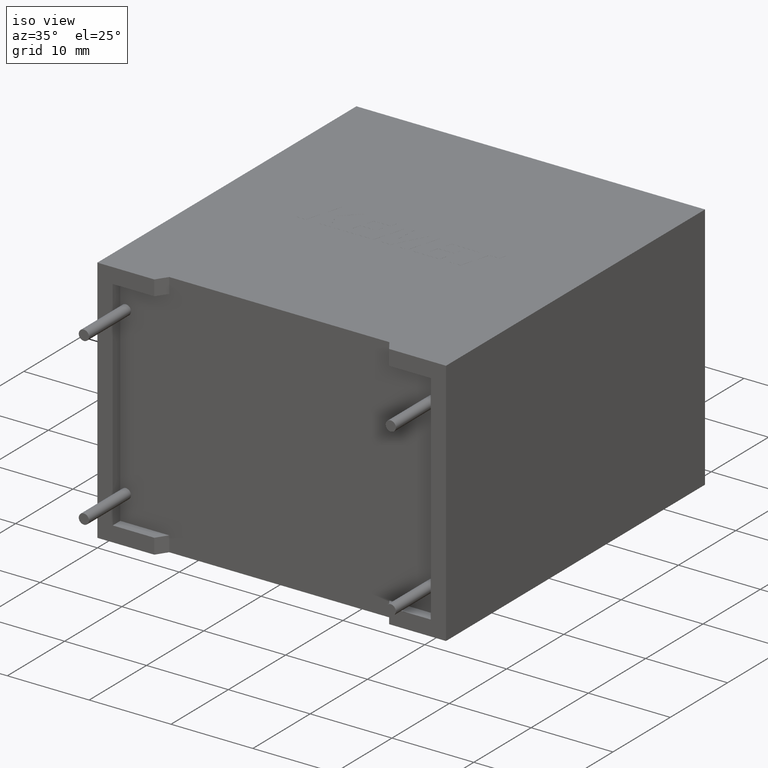
[diagram: clean part render]
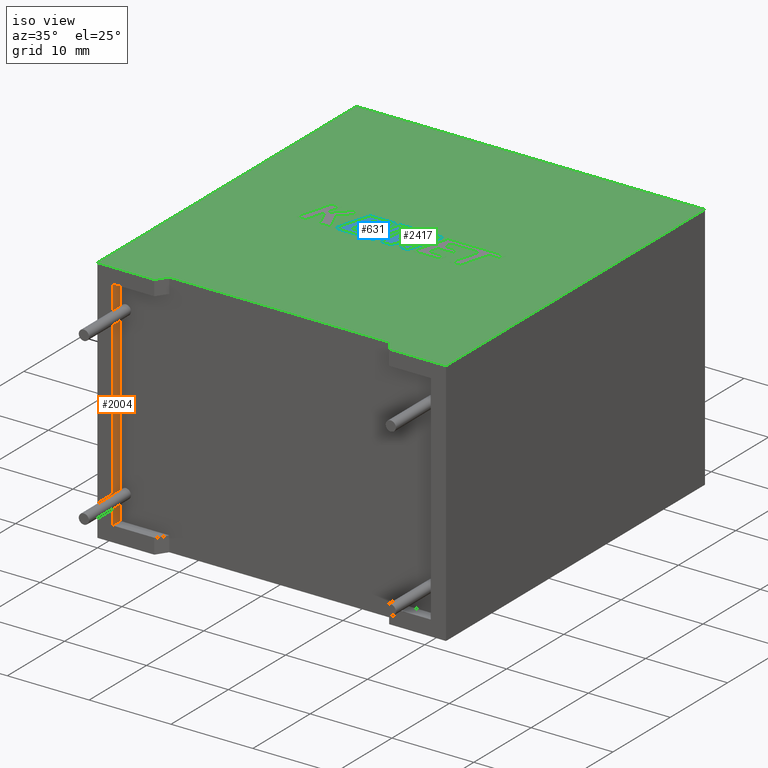
[diagram: same view with three faces highlighted in distinct colors, each labeled with its STEP entity id]
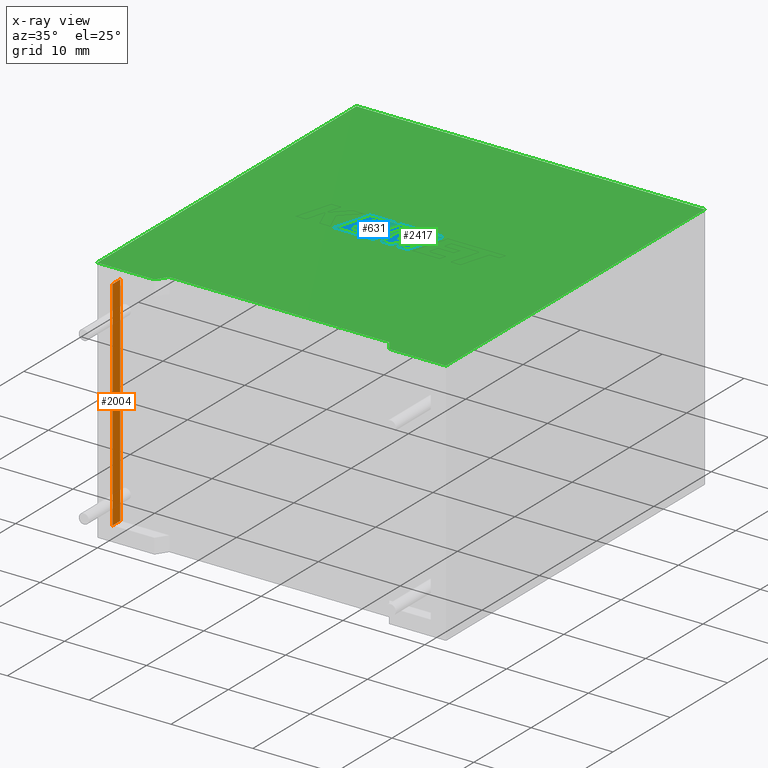
[diagram: x-ray of the same camera — body ghosted, the three highlighted faces saturated]
A machine part, iso view with three faces highlighted in distinct colors.
The next image is the same camera in x-ray (body ghosted, the three faces saturated) — at least one of them is partly hidden behind the body in this view.
Their STEP definitions:

[orange] entity #2004 — the highlighted planar face has unit normal (-1, 0, 0).
#155 = EDGE_CURVE ( 'NONE', #1186, #2855, #3090, .T. ) ;
#436 = ORIENTED_EDGE ( 'NONE', *, *, #3044, .T. ) ;
#516 = CARTESIAN_POINT ( 'NONE',  ( 1.868687999999999700, 1.328880000000000100, 28.53131200000000000 ) ) ;
#649 = EDGE_LOOP ( 'NONE', ( #2933, #1786, #1839, #436 ) ) ;
#772 = LINE ( 'NONE', #849, #1125 ) ;
#801 = FACE_OUTER_BOUND ( 'NONE', #649, .T. ) ;
#849 = CARTESIAN_POINT ( 'NONE',  ( 1.868687999999999700, 1.328880000000000100, 28.53131200000000000 ) ) ;
#857 = DIRECTION ( 'NONE',  ( 0.0000000000000000000, 0.0000000000000000000, -1.000000000000000000 ) ) ;
#904 = CARTESIAN_POINT ( 'NONE',  ( 1.868687999999999700, 0.0000000000000000000, 1.868687999999999900 ) ) ;
#905 = DIRECTION ( 'NONE',  ( -0.0000000000000000000, -1.000000000000000000, -0.0000000000000000000 ) ) ;
#1125 = VECTOR ( 'NONE', #857, 1000.000000000000000 ) ;
#1186 = VERTEX_POINT ( 'NONE', #2762 ) ;
#1210 = VERTEX_POINT ( 'NONE', #1855 ) ;
#1264 = DIRECTION ( 'NONE',  ( 0.0000000000000000000, 0.0000000000000000000, -1.000000000000000000 ) ) ;
#1344 = AXIS2_PLACEMENT_3D ( 'NONE', #2194, #2425, #1973 ) ;
#1484 = CARTESIAN_POINT ( 'NONE',  ( 1.868687999999999700, 0.0000000000000000000, 28.53131200000000000 ) ) ;
#1487 = VECTOR ( 'NONE', #1264, 1000.000000000000000 ) ;
#1546 = EDGE_CURVE ( 'NONE', #1210, #1186, #772, .T. ) ;
#1612 = VERTEX_POINT ( 'NONE', #2252 ) ;
#1786 = ORIENTED_EDGE ( 'NONE', *, *, #155, .F. ) ;
#1839 = ORIENTED_EDGE ( 'NONE', *, *, #1546, .F. ) ;
#1855 = CARTESIAN_POINT ( 'NONE',  ( 1.868687999999999700, 1.328880000000000100, 28.53131200000000000 ) ) ;
#1973 = DIRECTION ( 'NONE',  ( 0.0000000000000000000, 0.0000000000000000000, 1.000000000000000000 ) ) ;
#2004 = ADVANCED_FACE ( 'NONE', ( #801 ), #2969, .F. ) ;
#2194 = CARTESIAN_POINT ( 'NONE',  ( 1.868687999999999700, 1.328880000000000100, 28.53131200000000000 ) ) ;
#2252 = CARTESIAN_POINT ( 'NONE',  ( 1.868687999999999700, 0.0000000000000000000, 28.53131200000000000 ) ) ;
#2351 = CARTESIAN_POINT ( 'NONE',  ( 1.868687999999999700, 1.328880000000000100, 1.868687999999999900 ) ) ;
#2425 = DIRECTION ( 'NONE',  ( -1.000000000000000000, 0.0000000000000000000, 0.0000000000000000000 ) ) ;
#2480 = EDGE_CURVE ( 'NONE', #1612, #2855, #3041, .T. ) ;
#2762 = CARTESIAN_POINT ( 'NONE',  ( 1.868687999999999700, 1.328880000000000100, 1.868687999999999900 ) ) ;
#2850 = LINE ( 'NONE', #516, #2997 ) ;
#2855 = VERTEX_POINT ( 'NONE', #904 ) ;
#2924 = DIRECTION ( 'NONE',  ( -0.0000000000000000000, -1.000000000000000000, -0.0000000000000000000 ) ) ;
#2933 = ORIENTED_EDGE ( 'NONE', *, *, #2480, .T. ) ;
#2953 = VECTOR ( 'NONE', #905, 1000.000000000000000 ) ;
#2969 = PLANE ( 'NONE',  #1344 ) ;
#2997 = VECTOR ( 'NONE', #2924, 1000.000000000000000 ) ;
#3041 = LINE ( 'NONE', #1484, #1487 ) ;
#3044 = EDGE_CURVE ( 'NONE', #1210, #1612, #2850, .T. ) ;
#3090 = LINE ( 'NONE', #2351, #2953 ) ;

[blue] entity #631 — the highlighted planar face has unit normal (0, 0, -1).
#1 = EDGE_CURVE ( 'NONE', #1891, #2957, #434, .T. ) ;
#24 = EDGE_CURVE ( 'NONE', #1314, #997, #93, .T. ) ;
#34 = EDGE_CURVE ( 'NONE', #621, #551, #2257, .T. ) ;
#35 = VERTEX_POINT ( 'NONE', #3023 ) ;
#55 = ORIENTED_EDGE ( 'NONE', *, *, #2298, .T. ) ;
#74 = EDGE_CURVE ( 'NONE', #1447, #2144, #1228, .T. ) ;
#93 = LINE ( 'NONE', #2565, #1378 ) ;
#96 = VERTEX_POINT ( 'NONE', #1582 ) ;
#107 = CARTESIAN_POINT ( 'NONE',  ( 23.69914816909359300, 24.29429440274525800, 30.40500000000000100 ) ) ;
#111 = EDGE_CURVE ( 'NONE', #2614, #2317, #2408, .T. ) ;
#129 = LINE ( 'NONE', #1380, #2639 ) ;
#152 = ORIENTED_EDGE ( 'NONE', *, *, #2387, .T. ) ;
#162 = CARTESIAN_POINT ( 'NONE',  ( 19.04451057535562700, 23.91769180815600000, 30.40500000000000100 ) ) ;
#185 = VERTEX_POINT ( 'NONE', #2592 ) ;
#204 = VECTOR ( 'NONE', #1853, 1000.000000000000000 ) ;
#206 = CARTESIAN_POINT ( 'NONE',  ( 18.68735580131990700, 23.09268343126179300, 30.40500000000000100 ) ) ;
#224 = VECTOR ( 'NONE', #1656, 1000.000000000000000 ) ;
#233 = DIRECTION ( 'NONE',  ( 0.2763139702539144100, 0.9610674221107065000, 0.0000000000000000000 ) ) ;
#237 = EDGE_CURVE ( 'NONE', #240, #1984, #1224, .T. ) ;
#240 = VERTEX_POINT ( 'NONE', #3079 ) ;
#257 = EDGE_CURVE ( 'NONE', #1739, #1891, #129, .T. ) ;
#299 = EDGE_CURVE ( 'NONE', #2144, #2734, #1103, .T. ) ;
#302 = LINE ( 'NONE', #3022, #2699 ) ;
#369 = CARTESIAN_POINT ( 'NONE',  ( 19.28430409104226900, 24.76197267852246900, 30.40500000000000100 ) ) ;
#397 = VECTOR ( 'NONE', #1943, 1000.000000000000000 ) ;
#400 = EDGE_CURVE ( 'NONE', #2957, #185, #1375, .T. ) ;
#431 = CARTESIAN_POINT ( 'NONE',  ( 20.64337227469650000, 24.27527815657259000, 30.40500000000000100 ) ) ;
#434 = LINE ( 'NONE', #2296, #2836 ) ;
#472 = DIRECTION ( 'NONE',  ( -1.000000000000000000, 0.0000000000000000000, 0.0000000000000000000 ) ) ;
#475 = ORIENTED_EDGE ( 'NONE', *, *, #111, .T. ) ;
#492 = DIRECTION ( 'NONE',  ( -1.000000000000000000, 0.0000000000000000000, 0.0000000000000000000 ) ) ;
#515 = AXIS2_PLACEMENT_3D ( 'NONE', #2291, #1833, #1809 ) ;
#549 = VERTEX_POINT ( 'NONE', #369 ) ;
#551 = VERTEX_POINT ( 'NONE', #633 ) ;
#560 = CARTESIAN_POINT ( 'NONE',  ( 19.50954545448809100, 20.32643999999987700, 30.40500000000000100 ) ) ;
#604 = DIRECTION ( 'NONE',  ( 0.2740217765954296400, 0.9617234872620531400, 0.0000000000000000000 ) ) ;
#611 = VECTOR ( 'NONE', #233, 1000.000000000000100 ) ;
#621 = VERTEX_POINT ( 'NONE', #107 ) ;
#631 = ADVANCED_FACE ( 'NONE', ( #3122 ), #2310, .F. ) ;
#633 = CARTESIAN_POINT ( 'NONE',  ( 22.55971088192821100, 20.32643999999988100, 30.40500000000000100 ) ) ;
#641 = CARTESIAN_POINT ( 'NONE',  ( 17.02363656092146000, 23.91769180815600000, 30.40500000000000100 ) ) ;
#685 = LINE ( 'NONE', #1430, #2163 ) ;
#729 = CARTESIAN_POINT ( 'NONE',  ( 16.00748119315608500, 24.76197267852246900, 30.40500000000000100 ) ) ;
#752 = CARTESIAN_POINT ( 'NONE',  ( 22.55971088192821100, 20.32643999999988100, 30.40500000000000100 ) ) ;
#787 = DIRECTION ( 'NONE',  ( -1.000000000000000000, 0.0000000000000000000, 0.0000000000000000000 ) ) ;
#821 = EDGE_CURVE ( 'NONE', #1984, #549, #2479, .T. ) ;
#828 = ORIENTED_EDGE ( 'NONE', *, *, #2932, .T. ) ;
#838 = CARTESIAN_POINT ( 'NONE',  ( 18.45314577919338500, 22.27270559325017300, 30.40500000000000100 ) ) ;
#851 = ORIENTED_EDGE ( 'NONE', *, *, #237, .T. ) ;
#898 = VECTOR ( 'NONE', #1627, 1000.000000000000200 ) ;
#926 = DIRECTION ( 'NONE',  ( -0.2765379750249978300, -0.9610029908221272600, 0.0000000000000000000 ) ) ;
#997 = VERTEX_POINT ( 'NONE', #1639 ) ;
#998 = VERTEX_POINT ( 'NONE', #1262 ) ;
#1028 = VECTOR ( 'NONE', #787, 1000.000000000000000 ) ;
#1089 = ORIENTED_EDGE ( 'NONE', *, *, #1269, .T. ) ;
#1096 = LINE ( 'NONE', #1146, #2908 ) ;
#1103 = LINE ( 'NONE', #206, #2178 ) ;
#1107 = VECTOR ( 'NONE', #2061, 1000.000000000000000 ) ;
#1121 = ORIENTED_EDGE ( 'NONE', *, *, #821, .T. ) ;
#1146 = CARTESIAN_POINT ( 'NONE',  ( 14.73111344322171200, 20.32643999999987700, 30.40500000000000100 ) ) ;
#1174 = CARTESIAN_POINT ( 'NONE',  ( 23.68684829922329600, 20.32643999999988100, 30.40500000000000100 ) ) ;
#1197 = CARTESIAN_POINT ( 'NONE',  ( 18.69434191160631900, 21.17030278269269100, 30.40500000000000100 ) ) ;
#1206 = CARTESIAN_POINT ( 'NONE',  ( 24.96209664954390200, 24.76197267852246900, 30.40500000000000100 ) ) ;
#1224 = LINE ( 'NONE', #641, #204 ) ;
#1228 = LINE ( 'NONE', #838, #1771 ) ;
#1262 = CARTESIAN_POINT ( 'NONE',  ( 21.60450190883435100, 20.32643999999987700, 30.40500000000000100 ) ) ;
#1269 = EDGE_CURVE ( 'NONE', #2593, #998, #2538, .T. ) ;
#1273 = DIRECTION ( 'NONE',  ( 1.000000000000000000, 0.0000000000000000000, 0.0000000000000000000 ) ) ;
#1287 = LINE ( 'NONE', #1197, #1492 ) ;
#1289 = DIRECTION ( 'NONE',  ( 0.4668459304955230900, 0.8843386665637600300, 0.0000000000000000000 ) ) ;
#1309 = CARTESIAN_POINT ( 'NONE',  ( 23.69914816909359300, 24.29429440274525800, 30.40500000000000100 ) ) ;
#1314 = VERTEX_POINT ( 'NONE', #1878 ) ;
#1320 = CARTESIAN_POINT ( 'NONE',  ( 19.50954545448809100, 20.32643999999987700, 30.40500000000000100 ) ) ;
#1324 = ORIENTED_EDGE ( 'NONE', *, *, #299, .T. ) ;
#1352 = EDGE_CURVE ( 'NONE', #2734, #240, #685, .T. ) ;
#1375 = LINE ( 'NONE', #1550, #1028 ) ;
#1378 = VECTOR ( 'NONE', #604, 1000.000000000000100 ) ;
#1380 = CARTESIAN_POINT ( 'NONE',  ( 23.01670218402871300, 24.76197267852246900, 30.40500000000000100 ) ) ;
#1382 = ORIENTED_EDGE ( 'NONE', *, *, #257, .T. ) ;
#1387 = CARTESIAN_POINT ( 'NONE',  ( 23.01670218402871300, 24.76197267852246900, 30.40500000000000100 ) ) ;
#1396 = CARTESIAN_POINT ( 'NONE',  ( 19.72672177880340200, 24.76197267852246900, 30.40500000000000100 ) ) ;
#1406 = LINE ( 'NONE', #1663, #2941 ) ;
#1430 = CARTESIAN_POINT ( 'NONE',  ( 16.78357331124689000, 23.09268343126179300, 30.40500000000000100 ) ) ;
#1447 = VERTEX_POINT ( 'NONE', #1495 ) ;
#1451 = DIRECTION ( 'NONE',  ( -1.000000000000000000, 0.0000000000000000000, 0.0000000000000000000 ) ) ;
#1458 = ORIENTED_EDGE ( 'NONE', *, *, #24, .T. ) ;
#1481 = EDGE_CURVE ( 'NONE', #551, #2352, #2330, .T. ) ;
#1490 = VECTOR ( 'NONE', #1273, 1000.000000000000000 ) ;
#1492 = VECTOR ( 'NONE', #492, 1000.000000000000000 ) ;
#1495 = CARTESIAN_POINT ( 'NONE',  ( 18.45314577919338500, 22.27270559325017300, 30.40500000000000100 ) ) ;
#1499 = VECTOR ( 'NONE', #1712, 1000.000000000000200 ) ;
#1550 = CARTESIAN_POINT ( 'NONE',  ( 21.61565822307399600, 24.76197267852246900, 30.40500000000000100 ) ) ;
#1561 = VECTOR ( 'NONE', #2816, 1000.000000000000000 ) ;
#1566 = DIRECTION ( 'NONE',  ( 0.05375259206908569700, 0.9985542843760946100, 0.0000000000000000000 ) ) ;
#1567 = ORIENTED_EDGE ( 'NONE', *, *, #2086, .T. ) ;
#1582 = CARTESIAN_POINT ( 'NONE',  ( 18.69434191160631900, 21.17030278269269100, 30.40500000000000100 ) ) ;
#1627 = DIRECTION ( 'NONE',  ( -0.2762517575166409900, -0.9610853065513834700, 0.0000000000000000000 ) ) ;
#1639 = CARTESIAN_POINT ( 'NONE',  ( 16.54963302310860100, 22.27270559325017300, 30.40500000000000100 ) ) ;
#1656 = DIRECTION ( 'NONE',  ( -0.05596501978068446600, -0.9984327301130244700, 0.0000000000000000000 ) ) ;
#1663 = CARTESIAN_POINT ( 'NONE',  ( 16.00748119315608500, 24.76197267852246900, 30.40500000000000100 ) ) ;
#1692 = ORIENTED_EDGE ( 'NONE', *, *, #1481, .T. ) ;
#1712 = DIRECTION ( 'NONE',  ( 0.2732148821746573400, 0.9619530280415400400, 0.0000000000000000000 ) ) ;
#1715 = EDGE_CURVE ( 'NONE', #35, #2614, #1096, .T. ) ;
#1728 = LINE ( 'NONE', #3104, #611 ) ;
#1739 = VERTEX_POINT ( 'NONE', #1387 ) ;
#1756 = ORIENTED_EDGE ( 'NONE', *, *, #2366, .T. ) ;
#1767 = ORIENTED_EDGE ( 'NONE', *, *, #74, .T. ) ;
#1771 = VECTOR ( 'NONE', #2532, 1000.000000000000000 ) ;
#1794 = ORIENTED_EDGE ( 'NONE', *, *, #2591, .T. ) ;
#1809 = DIRECTION ( 'NONE',  ( -1.000000000000000000, 0.0000000000000000000, -0.0000000000000000000 ) ) ;
#1833 = DIRECTION ( 'NONE',  ( 0.0000000000000000000, 0.0000000000000000000, -1.000000000000000000 ) ) ;
#1853 = DIRECTION ( 'NONE',  ( 1.000000000000000000, 0.0000000000000000000, 0.0000000000000000000 ) ) ;
#1878 = CARTESIAN_POINT ( 'NONE',  ( 16.23552779361820300, 21.17030278269269100, 30.40500000000000100 ) ) ;
#1891 = VERTEX_POINT ( 'NONE', #2134 ) ;
#1892 = DIRECTION ( 'NONE',  ( 0.2793947940878290800, 0.9601763114327595000, 0.0000000000000000000 ) ) ;
#1897 = CARTESIAN_POINT ( 'NONE',  ( 20.42202856382045800, 20.32643999999987700, 30.40500000000000100 ) ) ;
#1900 = EDGE_CURVE ( 'NONE', #2352, #2347, #1728, .T. ) ;
#1943 = DIRECTION ( 'NONE',  ( 1.000000000000000000, 0.0000000000000000000, 0.0000000000000000000 ) ) ;
#1955 = VECTOR ( 'NONE', #1451, 1000.000000000000000 ) ;
#1964 = EDGE_LOOP ( 'NONE', ( #152, #1382, #2638, #2601, #2516, #1756, #1458, #1567, #1767, #1324, #2032, #851, #1121, #1794, #55, #2537, #475, #828, #1089, #2928, #3000, #1692, #2700 ) ) ;
#1984 = VERTEX_POINT ( 'NONE', #2709 ) ;
#2032 = ORIENTED_EDGE ( 'NONE', *, *, #1352, .T. ) ;
#2046 = VECTOR ( 'NONE', #1289, 1000.000000000000000 ) ;
#2050 = DIRECTION ( 'NONE',  ( -0.2760118818968583200, -0.9611542233438683500, 0.0000000000000000000 ) ) ;
#2061 = DIRECTION ( 'NONE',  ( 0.2759782365590843200, 0.9611638845408925200, 0.0000000000000000000 ) ) ;
#2086 = EDGE_CURVE ( 'NONE', #997, #1447, #2274, .T. ) ;
#2104 = DIRECTION ( 'NONE',  ( 1.000000000000000000, 0.0000000000000000000, 0.0000000000000000000 ) ) ;
#2134 = CARTESIAN_POINT ( 'NONE',  ( 21.44508031966771700, 21.59317114338324800, 30.40500000000000100 ) ) ;
#2144 = VERTEX_POINT ( 'NONE', #2284 ) ;
#2163 = VECTOR ( 'NONE', #1892, 1000.000000000000100 ) ;
#2178 = VECTOR ( 'NONE', #472, 1000.000000000000000 ) ;
#2257 = LINE ( 'NONE', #1309, #2521 ) ;
#2261 = CARTESIAN_POINT ( 'NONE',  ( 16.78357331124689000, 23.09268343126179300, 30.40500000000000100 ) ) ;
#2274 = LINE ( 'NONE', #2511, #1490 ) ;
#2284 = CARTESIAN_POINT ( 'NONE',  ( 18.68735580131990700, 23.09268343126179300, 30.40500000000000100 ) ) ;
#2291 = CARTESIAN_POINT ( 'NONE',  ( -0.1503410928526370500, -1.896653983250437700, 30.40500000000000100 ) ) ;
#2296 = CARTESIAN_POINT ( 'NONE',  ( 21.44508031966771700, 21.59317114338324800, 30.40500000000000100 ) ) ;
#2298 = EDGE_CURVE ( 'NONE', #2383, #35, #1406, .T. ) ;
#2310 = PLANE ( 'NONE',  #515 ) ;
#2317 = VERTEX_POINT ( 'NONE', #431 ) ;
#2330 = LINE ( 'NONE', #752, #397 ) ;
#2347 = VERTEX_POINT ( 'NONE', #2665 ) ;
#2350 = CARTESIAN_POINT ( 'NONE',  ( 20.64337227469650000, 24.27527815657259000, 30.40500000000000100 ) ) ;
#2352 = VERTEX_POINT ( 'NONE', #1174 ) ;
#2366 = EDGE_CURVE ( 'NONE', #96, #1314, #1287, .T. ) ;
#2380 = LINE ( 'NONE', #1396, #898 ) ;
#2382 = CARTESIAN_POINT ( 'NONE',  ( 21.61565822307399600, 24.76197267852246900, 30.40500000000000100 ) ) ;
#2383 = VERTEX_POINT ( 'NONE', #729 ) ;
#2387 = EDGE_CURVE ( 'NONE', #2347, #1739, #2615, .T. ) ;
#2408 = LINE ( 'NONE', #1320, #1107 ) ;
#2479 = LINE ( 'NONE', #162, #1499 ) ;
#2511 = CARTESIAN_POINT ( 'NONE',  ( 16.54963302310860100, 22.27270559325017300, 30.40500000000000100 ) ) ;
#2516 = ORIENTED_EDGE ( 'NONE', *, *, #2889, .T. ) ;
#2521 = VECTOR ( 'NONE', #2050, 1000.000000000000100 ) ;
#2532 = DIRECTION ( 'NONE',  ( 0.2746459304916870600, 0.9615454294334487800, 0.0000000000000000000 ) ) ;
#2537 = ORIENTED_EDGE ( 'NONE', *, *, #1715, .T. ) ;
#2538 = LINE ( 'NONE', #1897, #1561 ) ;
#2565 = CARTESIAN_POINT ( 'NONE',  ( 16.23552779361820300, 21.17030278269269100, 30.40500000000000100 ) ) ;
#2591 = EDGE_CURVE ( 'NONE', #549, #2383, #302, .T. ) ;
#2592 = CARTESIAN_POINT ( 'NONE',  ( 19.72672177880340200, 24.76197267852246900, 30.40500000000000100 ) ) ;
#2593 = VERTEX_POINT ( 'NONE', #3013 ) ;
#2601 = ORIENTED_EDGE ( 'NONE', *, *, #400, .T. ) ;
#2614 = VERTEX_POINT ( 'NONE', #560 ) ;
#2615 = LINE ( 'NONE', #1206, #1955 ) ;
#2638 = ORIENTED_EDGE ( 'NONE', *, *, #1, .T. ) ;
#2639 = VECTOR ( 'NONE', #3068, 1000.000000000000100 ) ;
#2665 = CARTESIAN_POINT ( 'NONE',  ( 24.96209664954390200, 24.76197267852246900, 30.40500000000000100 ) ) ;
#2689 = EDGE_CURVE ( 'NONE', #998, #621, #2733, .T. ) ;
#2699 = VECTOR ( 'NONE', #2764, 1000.000000000000000 ) ;
#2700 = ORIENTED_EDGE ( 'NONE', *, *, #1900, .T. ) ;
#2709 = CARTESIAN_POINT ( 'NONE',  ( 19.04451057535562700, 23.91769180815600000, 30.40500000000000100 ) ) ;
#2733 = LINE ( 'NONE', #2759, #2046 ) ;
#2734 = VERTEX_POINT ( 'NONE', #2261 ) ;
#2759 = CARTESIAN_POINT ( 'NONE',  ( 21.60450190883435100, 20.32643999999987700, 30.40500000000000100 ) ) ;
#2764 = DIRECTION ( 'NONE',  ( -1.000000000000000000, 0.0000000000000000000, 0.0000000000000000000 ) ) ;
#2816 = DIRECTION ( 'NONE',  ( 1.000000000000000000, 0.0000000000000000000, 0.0000000000000000000 ) ) ;
#2836 = VECTOR ( 'NONE', #1566, 1000.000000000000100 ) ;
#2889 = EDGE_CURVE ( 'NONE', #185, #96, #2380, .T. ) ;
#2891 = LINE ( 'NONE', #2350, #224 ) ;
#2908 = VECTOR ( 'NONE', #2104, 1000.000000000000000 ) ;
#2928 = ORIENTED_EDGE ( 'NONE', *, *, #2689, .T. ) ;
#2932 = EDGE_CURVE ( 'NONE', #2317, #2593, #2891, .T. ) ;
#2941 = VECTOR ( 'NONE', #926, 1000.000000000000100 ) ;
#2957 = VERTEX_POINT ( 'NONE', #2382 ) ;
#3000 = ORIENTED_EDGE ( 'NONE', *, *, #34, .T. ) ;
#3013 = CARTESIAN_POINT ( 'NONE',  ( 20.42202856382045800, 20.32643999999987700, 30.40500000000000100 ) ) ;
#3022 = CARTESIAN_POINT ( 'NONE',  ( 19.28430409104226900, 24.76197267852246900, 30.40500000000000100 ) ) ;
#3023 = CARTESIAN_POINT ( 'NONE',  ( 14.73111344322171200, 20.32643999999987700, 30.40500000000000100 ) ) ;
#3068 = DIRECTION ( 'NONE',  ( -0.4443210308329524900, -0.8958676361826798400, 0.0000000000000000000 ) ) ;
#3079 = CARTESIAN_POINT ( 'NONE',  ( 17.02363656092146000, 23.91769180815600000, 30.40500000000000100 ) ) ;
#3104 = CARTESIAN_POINT ( 'NONE',  ( 23.68684829922329600, 20.32643999999988100, 30.40500000000000100 ) ) ;
#3122 = FACE_OUTER_BOUND ( 'NONE', #1964, .T. ) ;

[green] entity #2417 — the highlighted planar face has unit normal (0, 0, -1).
#60 = DIRECTION ( 'NONE',  ( -1.000000000000000000, 0.0000000000000000000, -0.0000000000000000000 ) ) ;
#116 = CARTESIAN_POINT ( 'NONE',  ( 35.64999999999999900, 1.702259050814820900E-015, 30.39999999999999900 ) ) ;
#198 = VECTOR ( 'NONE', #3030, 1000.000000000000000 ) ;
#207 = CARTESIAN_POINT ( 'NONE',  ( 34.74999999999999300, 1.328880000000003800, 30.39999999999999900 ) ) ;
#252 = CARTESIAN_POINT ( 'NONE',  ( 0.0000000000000000000, 0.0000000000000000000, 30.39999999999999900 ) ) ;
#324 = DIRECTION ( 'NONE',  ( 1.000000000000000000, 0.0000000000000000000, 0.0000000000000000000 ) ) ;
#384 = VECTOR ( 'NONE', #1427, 1000.000000000000000 ) ;
#473 = CARTESIAN_POINT ( 'NONE',  ( 0.0000000000000000000, 0.0000000000000000000, 30.39999999999999900 ) ) ;
#583 = EDGE_CURVE ( 'NONE', #2637, #2175, #840, .T. ) ;
#585 = ORIENTED_EDGE ( 'NONE', *, *, #1818, .T. ) ;
#655 = VECTOR ( 'NONE', #2156, 1000.000000000000100 ) ;
#732 = EDGE_CURVE ( 'NONE', #2637, #1560, #2946, .T. ) ;
#798 = FACE_OUTER_BOUND ( 'NONE', #2105, .T. ) ;
#835 = VERTEX_POINT ( 'NONE', #473 ) ;
#840 = LINE ( 'NONE', #1110, #198 ) ;
#884 = EDGE_CURVE ( 'NONE', #2175, #2643, #1686, .T. ) ;
#933 = PLANE ( 'NONE',  #2694 ) ;
#938 = EDGE_CURVE ( 'NONE', #2589, #835, #3081, .T. ) ;
#1012 = VERTEX_POINT ( 'NONE', #1875 ) ;
#1110 = CARTESIAN_POINT ( 'NONE',  ( 21.30000000000000100, 1.328880000000005400, 30.39999999999999900 ) ) ;
#1246 = EDGE_CURVE ( 'NONE', #2556, #2589, #3114, .T. ) ;
#1247 = ORIENTED_EDGE ( 'NONE', *, *, #2916, .T. ) ;
#1304 = CARTESIAN_POINT ( 'NONE',  ( 34.74999999999999300, 1.328880000000003800, 30.39999999999999900 ) ) ;
#1319 = VECTOR ( 'NONE', #2244, 1000.000000000000000 ) ;
#1427 = DIRECTION ( 'NONE',  ( -0.0000000000000000000, -1.000000000000000000, -0.0000000000000000000 ) ) ;
#1560 = VERTEX_POINT ( 'NONE', #116 ) ;
#1594 = LINE ( 'NONE', #2255, #2500 ) ;
#1611 = CARTESIAN_POINT ( 'NONE',  ( 0.0000000000000000000, 0.0000000000000000000, 30.39999999999999900 ) ) ;
#1616 = ORIENTED_EDGE ( 'NONE', *, *, #938, .T. ) ;
#1652 = DIRECTION ( 'NONE',  ( 1.000000000000000000, 0.0000000000000000000, 0.0000000000000000000 ) ) ;
#1686 = LINE ( 'NONE', #2902, #655 ) ;
#1818 = EDGE_CURVE ( 'NONE', #835, #2643, #2903, .T. ) ;
#1870 = ORIENTED_EDGE ( 'NONE', *, *, #2646, .T. ) ;
#1875 = CARTESIAN_POINT ( 'NONE',  ( 42.60000000000000100, 0.0000000000000000000, 30.39999999999999900 ) ) ;
#1919 = VECTOR ( 'NONE', #1652, 1000.000000000000000 ) ;
#1988 = CARTESIAN_POINT ( 'NONE',  ( 42.60000000000000100, 45.20000000000000300, 30.39999999999999900 ) ) ;
#1999 = ORIENTED_EDGE ( 'NONE', *, *, #732, .T. ) ;
#2105 = EDGE_LOOP ( 'NONE', ( #2443, #1999, #1870, #1247, #3080, #1616, #585, #2509 ) ) ;
#2156 = DIRECTION ( 'NONE',  ( -0.5607588684572006900, -0.8279791612393394600, 0.0000000000000000000 ) ) ;
#2167 = CARTESIAN_POINT ( 'NONE',  ( 0.0000000000000000000, 0.0000000000000000000, 30.39999999999999900 ) ) ;
#2175 = VERTEX_POINT ( 'NONE', #3033 ) ;
#2244 = DIRECTION ( 'NONE',  ( -1.000000000000000000, -0.0000000000000000000, -0.0000000000000000000 ) ) ;
#2255 = CARTESIAN_POINT ( 'NONE',  ( 0.0000000000000000000, 0.0000000000000000000, 30.39999999999999900 ) ) ;
#2280 = CARTESIAN_POINT ( 'NONE',  ( 6.950000000000000200, 1.702259050814820900E-015, 30.39999999999999900 ) ) ;
#2342 = LINE ( 'NONE', #2622, #2769 ) ;
#2417 = ADVANCED_FACE ( 'NONE', ( #798 ), #933, .F. ) ;
#2443 = ORIENTED_EDGE ( 'NONE', *, *, #583, .F. ) ;
#2495 = DIRECTION ( 'NONE',  ( 0.0000000000000000000, 0.0000000000000000000, -1.000000000000000000 ) ) ;
#2500 = VECTOR ( 'NONE', #324, 1000.000000000000000 ) ;
#2505 = CARTESIAN_POINT ( 'NONE',  ( 0.0000000000000000000, 45.20000000000000300, 30.39999999999999900 ) ) ;
#2509 = ORIENTED_EDGE ( 'NONE', *, *, #884, .F. ) ;
#2556 = VERTEX_POINT ( 'NONE', #1988 ) ;
#2589 = VERTEX_POINT ( 'NONE', #2505 ) ;
#2622 = CARTESIAN_POINT ( 'NONE',  ( 42.60000000000000100, 0.0000000000000000000, 30.39999999999999900 ) ) ;
#2631 = VECTOR ( 'NONE', #2884, 1000.000000000000100 ) ;
#2637 = VERTEX_POINT ( 'NONE', #1304 ) ;
#2643 = VERTEX_POINT ( 'NONE', #2280 ) ;
#2646 = EDGE_CURVE ( 'NONE', #1560, #1012, #1594, .T. ) ;
#2666 = CARTESIAN_POINT ( 'NONE',  ( 0.0000000000000000000, 45.20000000000000300, 30.39999999999999900 ) ) ;
#2694 = AXIS2_PLACEMENT_3D ( 'NONE', #252, #2495, #60 ) ;
#2769 = VECTOR ( 'NONE', #3091, 1000.000000000000000 ) ;
#2884 = DIRECTION ( 'NONE',  ( 0.5607588684572006900, -0.8279791612393394600, 0.0000000000000000000 ) ) ;
#2902 = CARTESIAN_POINT ( 'NONE',  ( 7.850000000000001400, 1.328880000000003800, 30.39999999999999900 ) ) ;
#2903 = LINE ( 'NONE', #1611, #1919 ) ;
#2916 = EDGE_CURVE ( 'NONE', #1012, #2556, #2342, .T. ) ;
#2946 = LINE ( 'NONE', #207, #2631 ) ;
#3030 = DIRECTION ( 'NONE',  ( -1.000000000000000000, -1.128537577308331900E-016, 0.0000000000000000000 ) ) ;
#3033 = CARTESIAN_POINT ( 'NONE',  ( 7.850000000000001400, 1.328880000000003800, 30.39999999999999900 ) ) ;
#3080 = ORIENTED_EDGE ( 'NONE', *, *, #1246, .T. ) ;
#3081 = LINE ( 'NONE', #2167, #384 ) ;
#3091 = DIRECTION ( 'NONE',  ( 0.0000000000000000000, 1.000000000000000000, 0.0000000000000000000 ) ) ;
#3114 = LINE ( 'NONE', #2666, #1319 ) ;